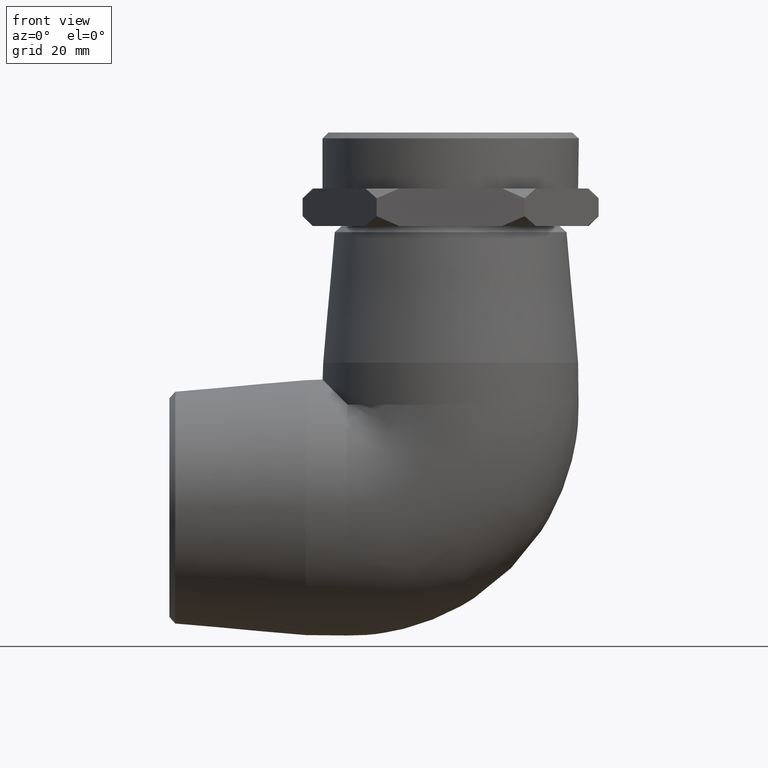
[diagram: clean part render]
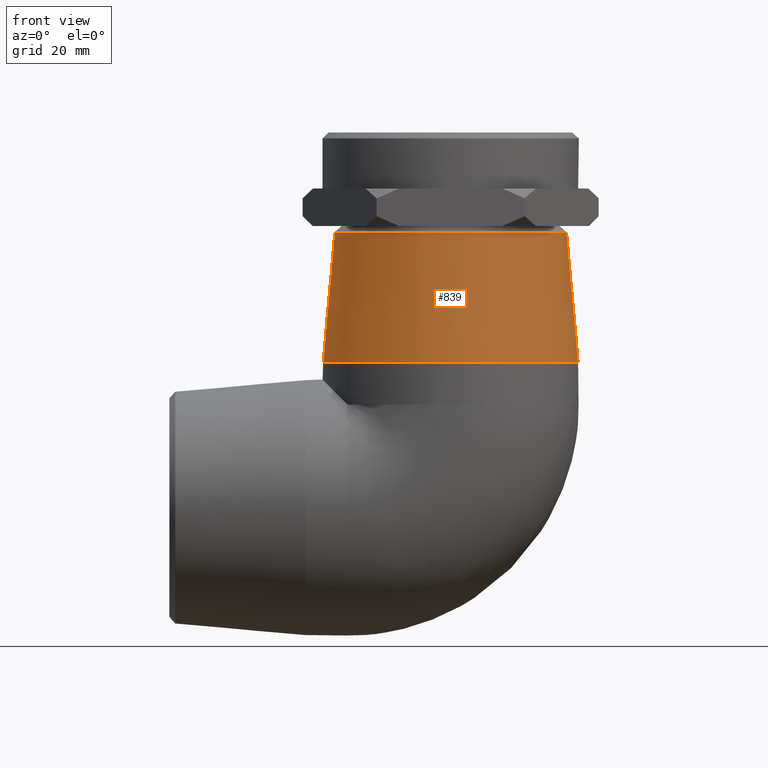
[diagram: same view with one face highlighted and labeled with its STEP entity id]
A machine part, front view. The second image highlights one B-rep face of the part: STEP entity #839.
In plain terms, the highlighted conical surface has half-angle 5.364 deg.
Its self-contained STEP definition (entity closure, byte-faithful):
#19=B_SPLINE_CURVE_WITH_KNOTS('',3,(#1496,#1497,#1498,#1499,#1500,#1501,
#1502,#1503,#1504,#1505,#1506,#1507,#1508,#1509,#1510,#1511,#1512,#1513,
#1514,#1515,#1516,#1517,#1518,#1519,#1520,#1521,#1522,#1523,#1524,#1525,
#1526,#1527,#1528,#1529),.UNSPECIFIED.,.T.,.F.,(4,2,2,2,2,2,2,2,2,2,2,2,
2,2,2,2,4),(0.,0.346005722043351,0.692011444086702,1.03993894678165,1.3878664494766,
1.73579395217155,2.0837214548665,2.42972717690985,2.7757328989532,3.14005919441716,
3.50438548988112,3.86229953056835,4.22021357125558,4.57812761194281,4.93604165263004,
5.300367948094,5.66469424355796),.UNSPECIFIED.);
#42=FACE_BOUND('',#246,.T.);
#43=FACE_BOUND('',#247,.T.);
#172=FACE_OUTER_BOUND('',#245,.T.);
#245=EDGE_LOOP('',(#669));
#246=EDGE_LOOP('',(#670));
#247=EDGE_LOOP('',(#671));
#338=CIRCLE('',#930,37.0766809217875);
#340=CIRCLE('',#934,41.);
#444=VERTEX_POINT('',#1487);
#446=VERTEX_POINT('',#1493);
#447=VERTEX_POINT('',#1495);
#539=EDGE_CURVE('',#444,#444,#338,.T.);
#541=EDGE_CURVE('',#446,#446,#340,.T.);
#542=EDGE_CURVE('',#447,#447,#19,.T.);
#669=ORIENTED_EDGE('',*,*,#541,.F.);
#670=ORIENTED_EDGE('',*,*,#542,.T.);
#671=ORIENTED_EDGE('',*,*,#539,.F.);
#808=CONICAL_SURFACE('',#933,38.95,5.36395421769431);
#839=ADVANCED_FACE('',(#172,#42,#43),#808,.T.);
#930=AXIS2_PLACEMENT_3D('',#1488,#1115,#1116);
#933=AXIS2_PLACEMENT_3D('',#1492,#1121,#1122);
#934=AXIS2_PLACEMENT_3D('',#1494,#1123,#1124);
#1115=DIRECTION('center_axis',(0.,0.,1.));
#1116=DIRECTION('ref_axis',(-6.12323399573677E-17,-1.,0.));
#1121=DIRECTION('center_axis',(6.12323399573677E-17,-1.5419764230905E-18,
-1.));
#1122=DIRECTION('ref_axis',(0.,1.,0.));
#1123=DIRECTION('center_axis',(6.12323399573677E-17,-1.5419764230905E-18,
-1.));
#1124=DIRECTION('ref_axis',(-1.,0.,-6.12323399573676E-17));
#1487=CARTESIAN_POINT('',(-9.93627211600909E-15,37.0766809217875,88.1182763614504));
#1488=CARTESIAN_POINT('Origin',(-7.66598018531534E-15,0.,88.1182763614504));
#1492=CARTESIAN_POINT('Origin',(-4.1740045070939E-15,-3.36664852374758E-17,
68.1666666666667));
#1493=CARTESIAN_POINT('',(-2.8370984180247E-15,41.,46.3333333333333));
#1494=CARTESIAN_POINT('Origin',(-2.8370984180247E-15,-6.73329704749516E-17,
46.3333333333333));
#1495=CARTESIAN_POINT('',(9.38542583207337,37.398527974994,72.339312871797));
#1496=CARTESIAN_POINT('Ctrl Pts',(9.38542583207336,37.3985279749941,72.3393128717971));
#1497=CARTESIAN_POINT('Ctrl Pts',(9.35918202023796,37.2939530789097,73.4876147170218));
#1498=CARTESIAN_POINT('Ctrl Pts',(9.10201372872262,37.2424863085223,74.7103167042037));
#1499=CARTESIAN_POINT('Ctrl Pts',(8.11707419144749,37.2542328824674,76.9507875969112));
#1500=CARTESIAN_POINT('Ctrl Pts',(7.3894502310545,37.3140150111509,77.9686379236323));
#1501=CARTESIAN_POINT('Ctrl Pts',(5.72912594144926,37.4524792789773,79.5732039826066));
#1502=CARTESIAN_POINT('Ctrl Pts',(4.68240947466268,37.5401933866602,80.2675861802236));
#1503=CARTESIAN_POINT('Ctrl Pts',(2.39781590284672,37.6685127783826,81.1874905751105));
#1504=CARTESIAN_POINT('Ctrl Pts',(1.1597583423165,37.7062640138496,81.4129605029022));
#1505=CARTESIAN_POINT('Ctrl Pts',(-1.1597583423165,37.7062640138496,81.4129605029022));
#1506=CARTESIAN_POINT('Ctrl Pts',(-2.39781590284672,37.6685127783826,81.1874905751105));
#1507=CARTESIAN_POINT('Ctrl Pts',(-4.68240947466269,37.5401933866602,80.2675861802236));
#1508=CARTESIAN_POINT('Ctrl Pts',(-5.72912594144927,37.4524792789773,79.5732039826066));
#1509=CARTESIAN_POINT('Ctrl Pts',(-7.38945023105451,37.3140150111509,77.9686379236323));
#1510=CARTESIAN_POINT('Ctrl Pts',(-8.1170741914475,37.2542328824674,76.9507875969112));
#1511=CARTESIAN_POINT('Ctrl Pts',(-9.10201372872263,37.2424863085223,74.7103167042037));
#1512=CARTESIAN_POINT('Ctrl Pts',(-9.35918202023797,37.2939530789097,73.4876147170218));
#1513=CARTESIAN_POINT('Ctrl Pts',(-9.41305922116411,37.5086399819977,71.1302098694695));
#1514=CARTESIAN_POINT('Ctrl Pts',(-9.18947377542954,37.6914792298821,69.8479610975961));
#1515=CARTESIAN_POINT('Ctrl Pts',(-8.23725622866267,38.1366545263766,67.4986144055875));
#1516=CARTESIAN_POINT('Ctrl Pts',(-7.50905864007234,38.3953020930227,66.4306429948522));
#1517=CARTESIAN_POINT('Ctrl Pts',(-5.83452179093109,38.8434328160888,64.7600124725115));
#1518=CARTESIAN_POINT('Ctrl Pts',(-4.78070402426102,39.0634893591952,64.0389447893487));
#1519=CARTESIAN_POINT('Ctrl Pts',(-2.46023658379362,39.3682772852435,63.0785406997474));
#1520=CARTESIAN_POINT('Ctrl Pts',(-1.19304680229077,39.4501738503251,62.8396118380008));
#1521=CARTESIAN_POINT('Ctrl Pts',(1.19304680229076,39.4501738503251,62.8396118380008));
#1522=CARTESIAN_POINT('Ctrl Pts',(2.46023658379361,39.3682772852435,63.0785406997474));
#1523=CARTESIAN_POINT('Ctrl Pts',(4.78070402426101,39.0634893591952,64.0389447893487));
#1524=CARTESIAN_POINT('Ctrl Pts',(5.83452179093108,38.8434328160888,64.7600124725115));
#1525=CARTESIAN_POINT('Ctrl Pts',(7.50905864007233,38.3953020930227,66.4306429948522));
#1526=CARTESIAN_POINT('Ctrl Pts',(8.23725622866267,38.1366545263766,67.4986144055875));
#1527=CARTESIAN_POINT('Ctrl Pts',(9.18947377542953,37.6914792298821,69.8479610975961));
#1528=CARTESIAN_POINT('Ctrl Pts',(9.4130592211641,37.5086399819977,71.1302098694695));
#1529=CARTESIAN_POINT('Ctrl Pts',(9.38542583207336,37.3985279749941,72.3393128717971));